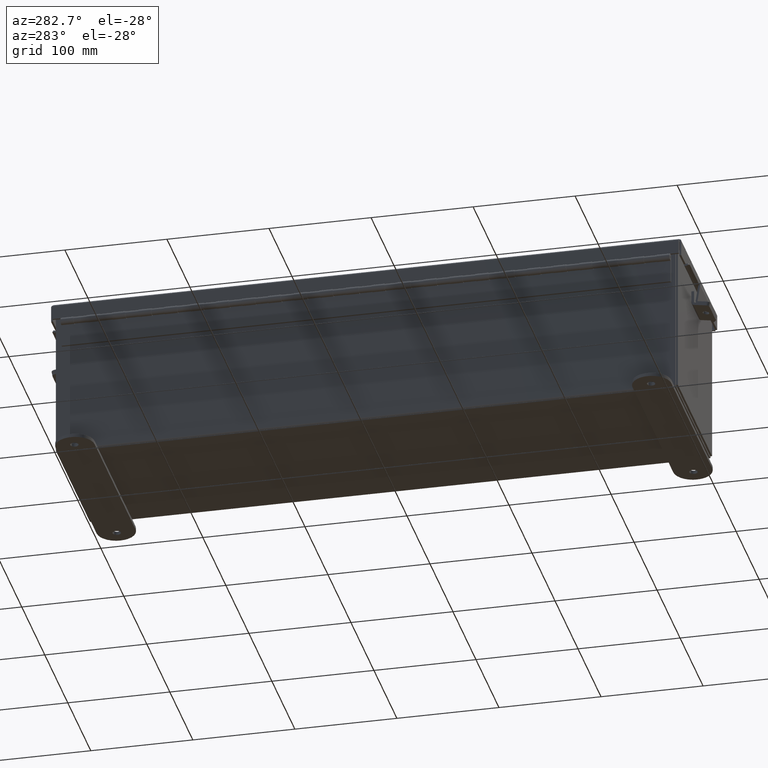
[diagram: clean part render]
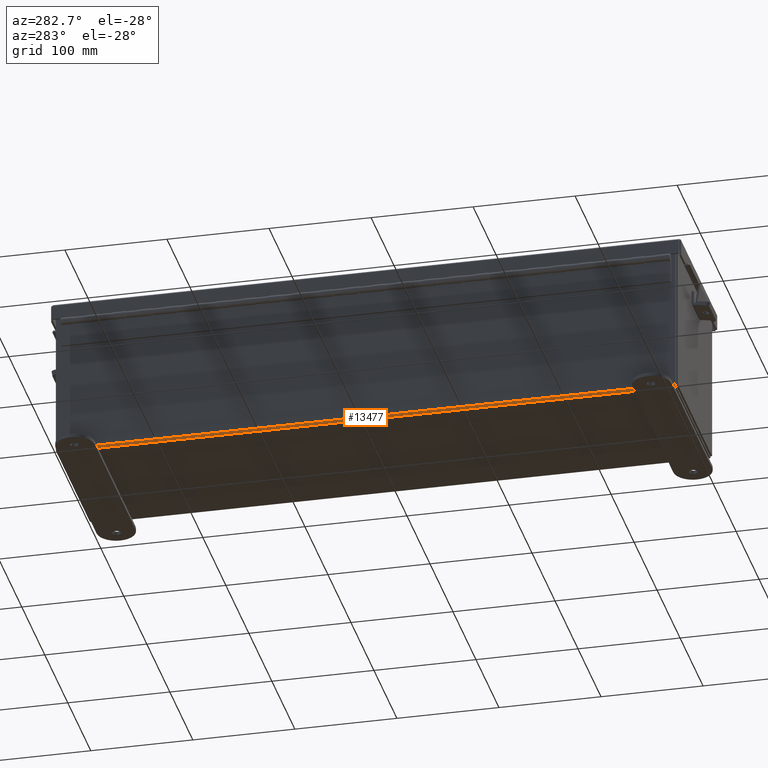
[diagram: same view with one face highlighted and labeled with its STEP entity id]
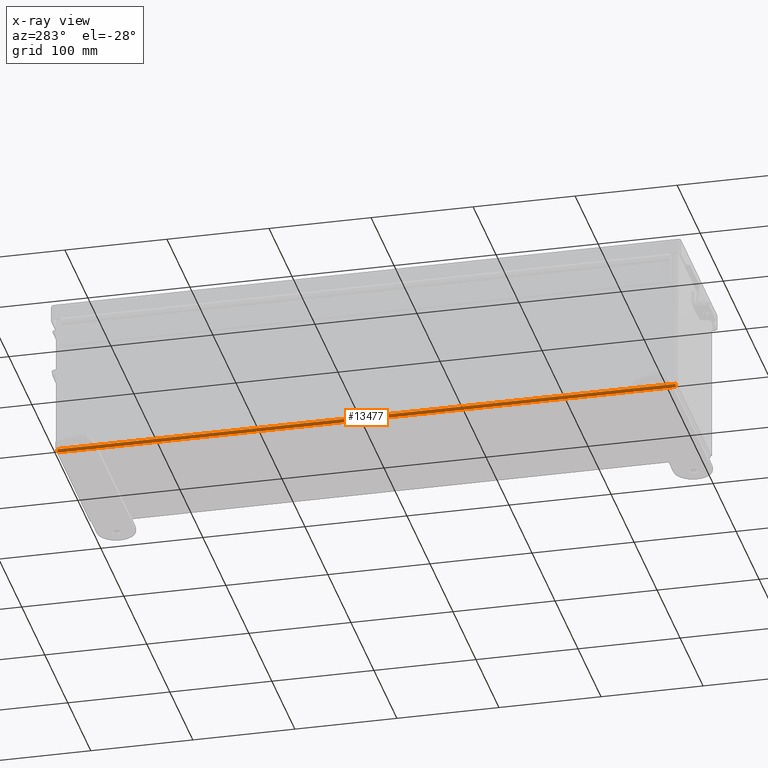
[diagram: x-ray of the same camera — body ghosted, the highlighted face saturated]
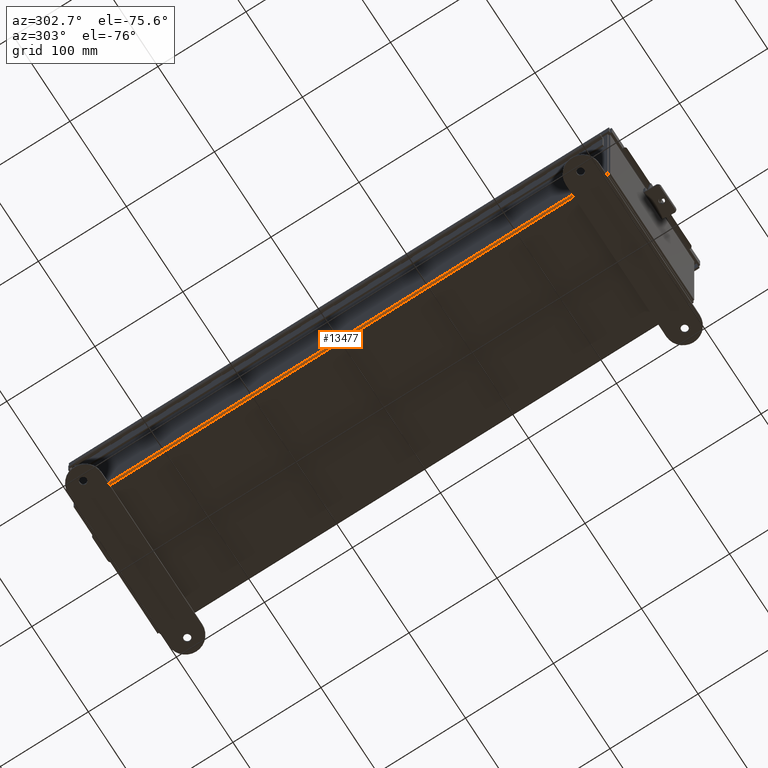
[diagram: same view with one face highlighted and labeled with its STEP entity id]
A machine part, auxiliary view. The second image highlights one B-rep face of the part: STEP entity #13477.
The next image is the same camera in x-ray: the body ghosted, the highlighted face saturated — about 0% of this face is hidden behind the body in this view.
A second angle (auxiliary view) of the same face is appended — the face is thin or edge-on in the first view.
In plain terms, the highlighted cylindrical surface (edge-blend (fillet) strip) has radius 2.2276 mm, axis along (0, -1, -0).
Its self-contained STEP definition (entity closure, byte-faithful):
#389 = DIRECTION ( 'NONE',  ( -2.374631997337943600E-031, 1.000000000000000000, 6.872400678383597100E-017 ) ) ;
#768 = DIRECTION ( 'NONE',  ( 0.0000000000000000000, 0.0000000000000000000, -1.000000000000000000 ) ) ;
#1310 = AXIS2_PLACEMENT_3D ( 'NONE', #12742, #2384, #14487 ) ;
#1311 = VERTEX_POINT ( 'NONE', #13166 ) ;
#1313 = DIRECTION ( 'NONE',  ( 0.0000000000000000000, -1.000000000000000000, -8.208677865577646300E-017 ) ) ;
#1609 = VERTEX_POINT ( 'NONE', #7179 ) ;
#1629 = EDGE_CURVE ( 'NONE', #1609, #17143, #13719, .T. ) ;
#1715 = VERTEX_POINT ( 'NONE', #16856 ) ;
#1988 = LINE ( 'NONE', #12518, #19852 ) ;
#2384 = DIRECTION ( 'NONE',  ( -0.0000000000000000000, 1.000000000000000000, 8.208677865577646300E-017 ) ) ;
#2925 = CYLINDRICAL_SURFACE ( 'NONE', #8767, 0.08770000000000026400 ) ;
#3119 = CARTESIAN_POINT ( 'NONE',  ( -2.912300000000000600, -11.92529999999999600, -0.07470000000000173700 ) ) ;
#6172 = ORIENTED_EDGE ( 'NONE', *, *, #18678, .F. ) ;
#7179 = CARTESIAN_POINT ( 'NONE',  ( -3.000000000000000900, -11.92529999999999600, 0.01299999999999820400 ) ) ;
#8746 = AXIS2_PLACEMENT_3D ( 'NONE', #11226, #12644, #768 ) ;
#8767 = AXIS2_PLACEMENT_3D ( 'NONE', #11683, #1313, #16819 ) ;
#10659 = CARTESIAN_POINT ( 'NONE',  ( -2.912300000000000600, -11.92530000000000000, -0.07470000000000173700 ) ) ;
#11226 = CARTESIAN_POINT ( 'NONE',  ( -2.912300000000000600, -11.92529999999999600, 0.01299999999999835700 ) ) ;
#11683 = CARTESIAN_POINT ( 'NONE',  ( -2.912300000000000600, -11.92530000000000000, 0.01299999999999835700 ) ) ;
#12518 = CARTESIAN_POINT ( 'NONE',  ( -3.000000000000000900, 11.92529999999999600, 0.01299999999999984300 ) ) ;
#12644 = DIRECTION ( 'NONE',  ( 0.0000000000000000000, -1.000000000000000000, -8.208677865577646300E-017 ) ) ;
#12742 = CARTESIAN_POINT ( 'NONE',  ( -2.912300000000000600, 11.92529999999999600, 0.01300000000000032000 ) ) ;
#13166 = CARTESIAN_POINT ( 'NONE',  ( -3.000000000000000900, 11.92529999999999600, 0.01300000000000001300 ) ) ;
#13263 = ORIENTED_EDGE ( 'NONE', *, *, #18045, .T. ) ;
#13477 = ADVANCED_FACE ( 'NONE', ( #21882 ), #2925, .T. ) ;
#13566 = LINE ( 'NONE', #10659, #21676 ) ;
#13719 = CIRCLE ( 'NONE', #8746, 0.08770000000000009700 ) ;
#14146 = CIRCLE ( 'NONE', #1310, 0.08770000000000009700 ) ;
#14487 = DIRECTION ( 'NONE',  ( 0.0000000000000000000, 0.0000000000000000000, -1.000000000000000000 ) ) ;
#15271 = ORIENTED_EDGE ( 'NONE', *, *, #1629, .F. ) ;
#15879 = DIRECTION ( 'NONE',  ( -0.0000000000000000000, 1.000000000000000000, 8.208677865577646300E-017 ) ) ;
#16819 = DIRECTION ( 'NONE',  ( -1.000000000000000000, 0.0000000000000000000, -3.455694262224952200E-015 ) ) ;
#16856 = CARTESIAN_POINT ( 'NONE',  ( -2.912300000000000600, 11.92529999999999600, -0.07470000000000000300 ) ) ;
#17143 = VERTEX_POINT ( 'NONE', #3119 ) ;
#17449 = ORIENTED_EDGE ( 'NONE', *, *, #19603, .F. ) ;
#18045 = EDGE_CURVE ( 'NONE', #1609, #1311, #1988, .T. ) ;
#18576 = EDGE_LOOP ( 'NONE', ( #17449, #15271, #13263, #6172 ) ) ;
#18678 = EDGE_CURVE ( 'NONE', #1715, #1311, #14146, .T. ) ;
#19603 = EDGE_CURVE ( 'NONE', #17143, #1715, #13566, .T. ) ;
#19852 = VECTOR ( 'NONE', #389, 39.37007874015748100 ) ;
#21676 = VECTOR ( 'NONE', #15879, 39.37007874015748100 ) ;
#21882 = FACE_OUTER_BOUND ( 'NONE', #18576, .T. ) ;